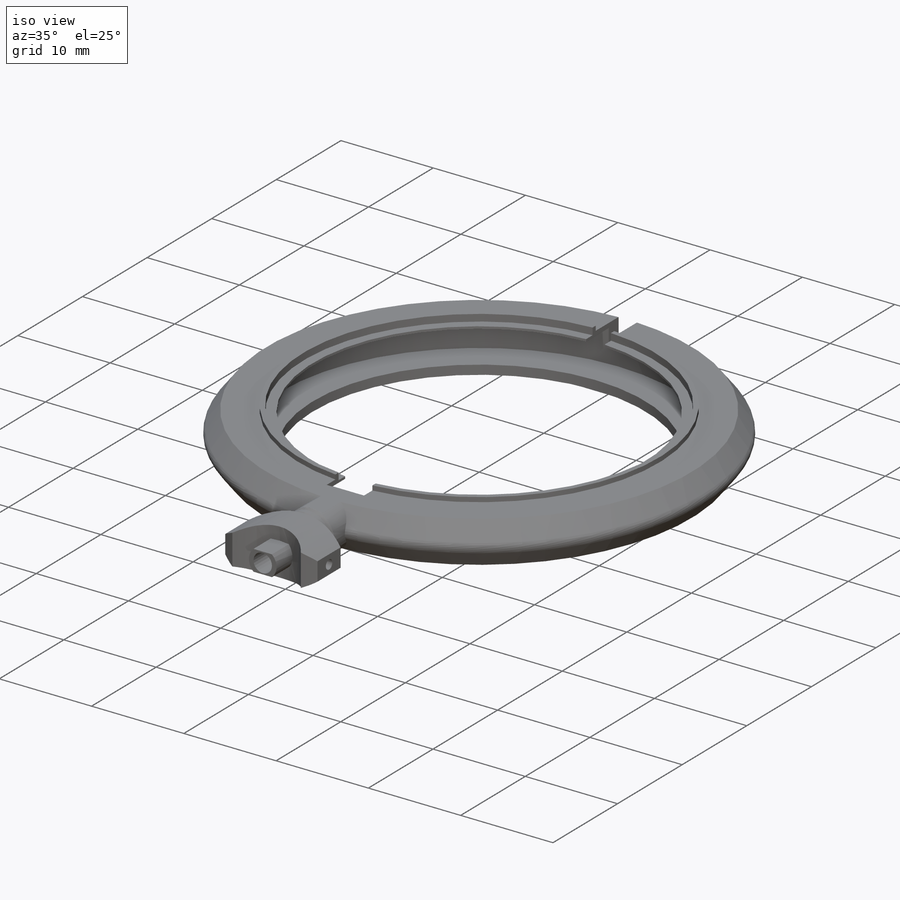
[diagram: iso view]
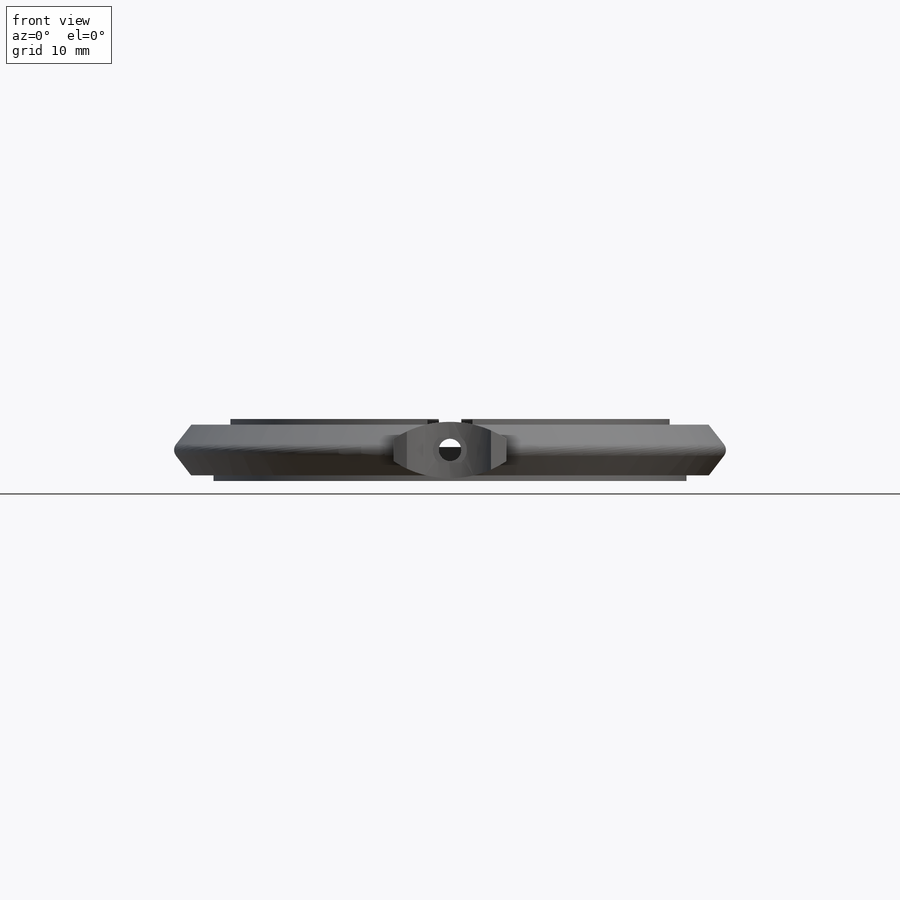
[diagram: front view]
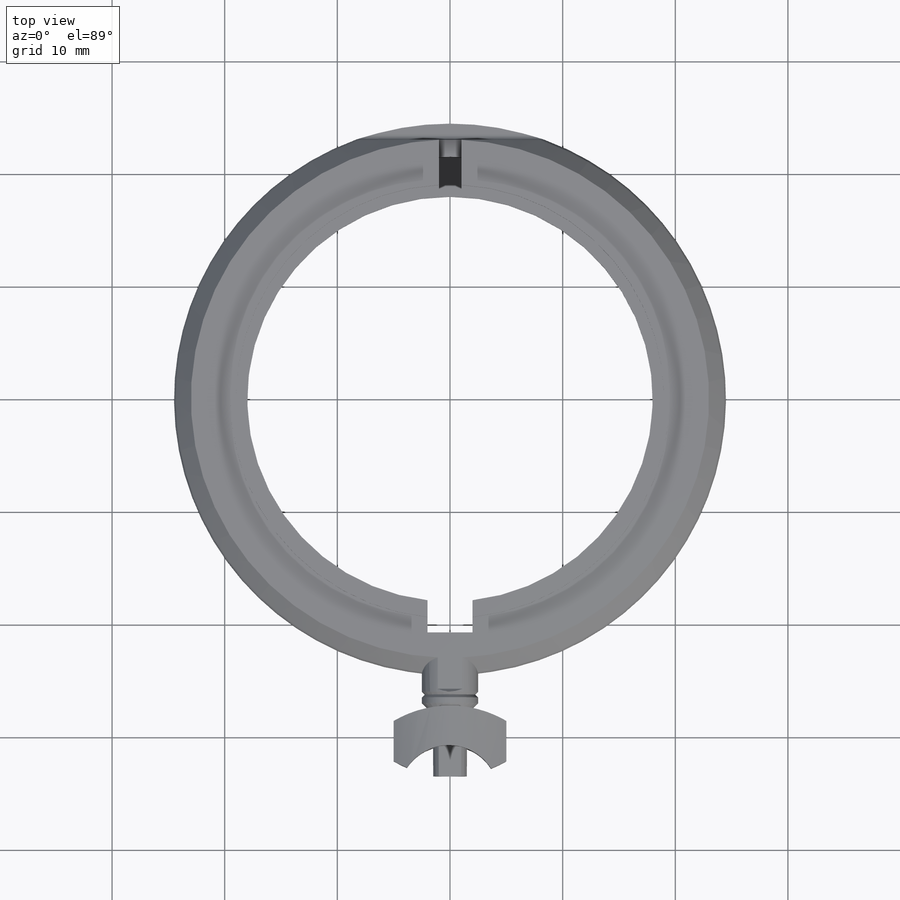
[diagram: top view]
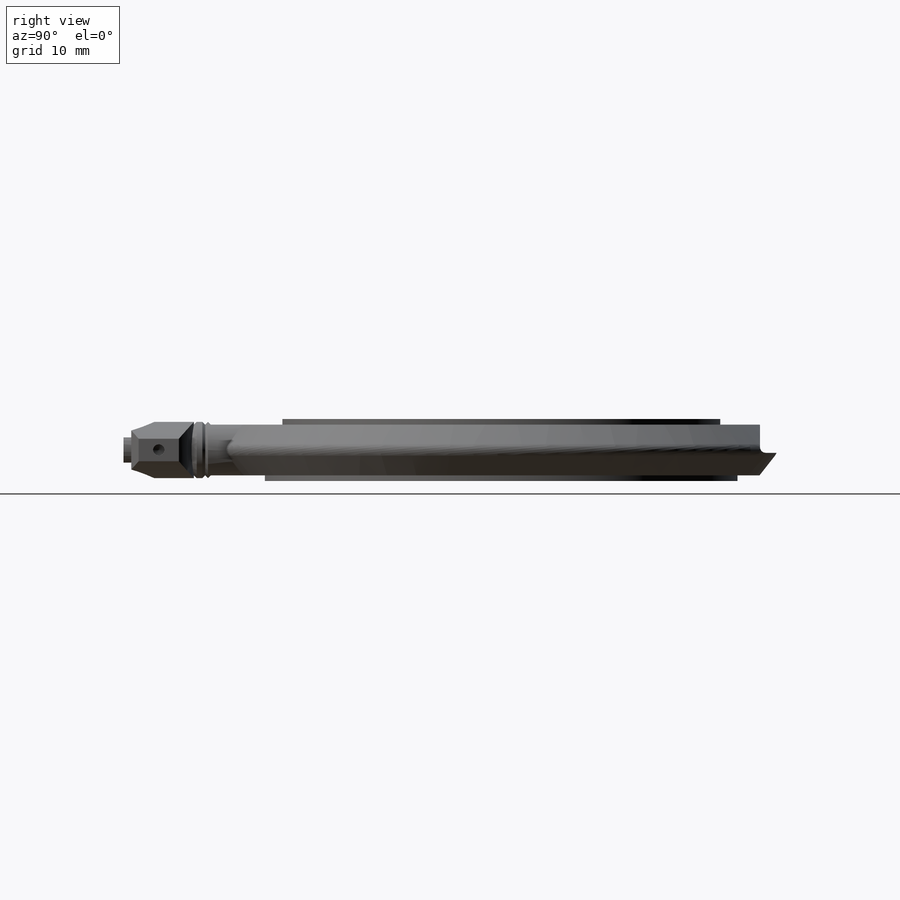
[diagram: right view]
SOLIDWORKS PART (.sldprt)
format: sldprt  version: not decoded by parser v0  size: 762,368 bytes
history: native  units: mm
features: sketch x14, cut_extrude x8, plane x5, revolve x2, extrude x2, material x1, hole x1 (+8 scaffold rows collapsed)
feature tree (41):
  scaffold x8  (default folders/planes/origin — collapsed)
  material  "Material <sin especificar>"
  plane  "Alzado"
  plane  "Planta"
  plane  "Vista lateral"
  sketch  "Croquis1"  dims[c1.D1=18.0mm c1.D2=21.0mm c1.D3=0.5mm c1.D4=22.75mm c1.D5=1.0mm c1.D6=3.5mm c1.D7=4.5mm c1.D8=0.5mm c1.D9=0.25mm c1.D10=1.0mm c1.D11=0.5mm c1.D12=24.0mm c1.D13=1.0mm c1.D14=~3.326286mm c2.D14=~144.186115deg c3.D14=2.0mm c4.D14=~138.703644deg c5.D14=3.5mm c5.D15=0.25mm c5.D12=1.0mm c6.D12=~141.340192deg c7.D12=0.75mm c7.D4=1.0mm c8.D12=24.5mm]
  revolve  "Revolución1"  Angle=360deg
  sketch  "Croquis2"  dims[D2=0.5mm D1=23.5mm D3=2.5mm D4=1.5mm D5=2.5mm]
  cut_extrude  "Cortar-Extruir1"  [1 undecoded]
  sketch  "Croquis3"  dims[c1.D1=42.0mm c1.D2=5.0mm c1.D3=2.5mm c2.D2=2.0mm c2.D3=4.0mm c2.D1=3.0mm c2.D4=17.0mm c2.D5=20.75mm c3.D4=17.5mm]
  cut_extrude  "Cortar-Extruir2"  [1 undecoded]
  sketch  "Croquis5"  dims[c1.D1=1.0mm c1.D2=0.5mm c1.D3=0.25mm c1.D4=0.25mm c1.D5=0.5mm c1.D6=2.5mm c1.D7=2.5mm c1.D8=0.5mm c1.D9=90.0deg c1.D10=0.5mm c1.D11=0.5mm c1.D12=6.5mm c1.D13=4.0mm c2.D1=2.5mm c2.D2=6.5mm c2.D3=0.5mm c3.D3=90.0deg c3.D4=0.25mm c4.D4=90.0deg c4.D5=4.0mm c4.D6=0.5mm c4.D7=0.5mm c4.D8=22.0mm c4.D9=2.25mm c4.D10=0.5mm c4.D11=0.25mm c4.D12=0.5mm c4.D13=1.0mm c4.D14=0.5mm c4.D15=0.25mm c4.D16=0.5mm]
  revolve  "Revolución2"  Angle=360deg
  sketch  "Croquis6"  dims[c1.D1=3.75mm c1.D2=3.75mm c1.D3=1.0mm c2.D3=135.0deg c2.D4=~1.328864mm c3.D4=45.0deg c3.D5=5.0mm c4.D5=45.0deg c4.D6=~0.707107mm c5.D6=45.0deg c5.D7=0.5mm c5.D3=1.25mm c5.D8=4.25mm c5.D9=0.5mm c6.D9=135.0deg c6.D10=4.25mm c6.D11=1.25mm c6.D12=0.5mm]
  cut_extrude  "Cortar-Extruir3"  [1 undecoded]
  plane  "Plano1"
  sketch  "Croquis8"  dims[D3=20.0mm D4=20.0mm D1=37.25mm D2=5.0mm]
  extrude  "Saliente-Extruir1"  Depth=2.5mm
  sketch  "Croquis9"  dims[D1=7.0mm D2=3.0mm D3=5.0mm D4=5.0mm D5=26.0mm]
  cut_extrude  "Cortar-Extruir5"  [1 undecoded]
  plane  "Plano2"  Offset=33.5mm
  sketch  "Croquis10"  dims[D3=9.1mm D1=1.5mm D2=1.5mm]
  cut_extrude  "Cortar-Extruir6"  Depth=6.5mm
  sketch  "Croquis12"  dims[c1.D3=10.0mm c1.D1=4.0mm c1.D2=4.0mm c2.D3=2.75mm]
  cut_extrude  "Cortar-Extruir7"  Depth=6.5mm
  sketch  "Croquis15"  dims[c1.D1=3.0mm c1.D2=2.75mm c1.D3=3.0mm c1.D4=1.5mm c2.D3=2.25mm c2.D4=2.0mm c2.D5=~1.968403mm]
  extrude  "Saliente-Extruir2"  [1 undecoded]
  sketch  "Croquis13"  dims[D1=2.0mm D2=2.75mm]
  cut_extrude  "Cortar-Extruir8"  [1 undecoded]
  hole  "Diámetro de taladro Ø1.0 (1)1"  Depth=2mm  [1 undecoded]
  sketch  "Croquis3D1"
  sketch  "Croquis14"  dims[hole-wizard template sketch: 46 standard entries collapsed; hole parameters kept: c15.Diámetro de taladro=1.0mm c15.Profundidad de taladro=2.0mm c15.D3=~14.816244mm c15.Ángulo de perforador=118.0deg]
  sketch  "Croquis16"  dims[D1=2.0mm D2=7.0mm]
  cut_extrude  "Cortar-Extruir9"  [1 undecoded]
decode coverage: 19 of 27 modeling features carry decoded parameters
note: ~ marks probable driven/reference dimensions
note: 8 parameter values undecoded
summary: no parameter record found for 8 features
note: suppression state not decoded; provenance and decode notes live in map.json
